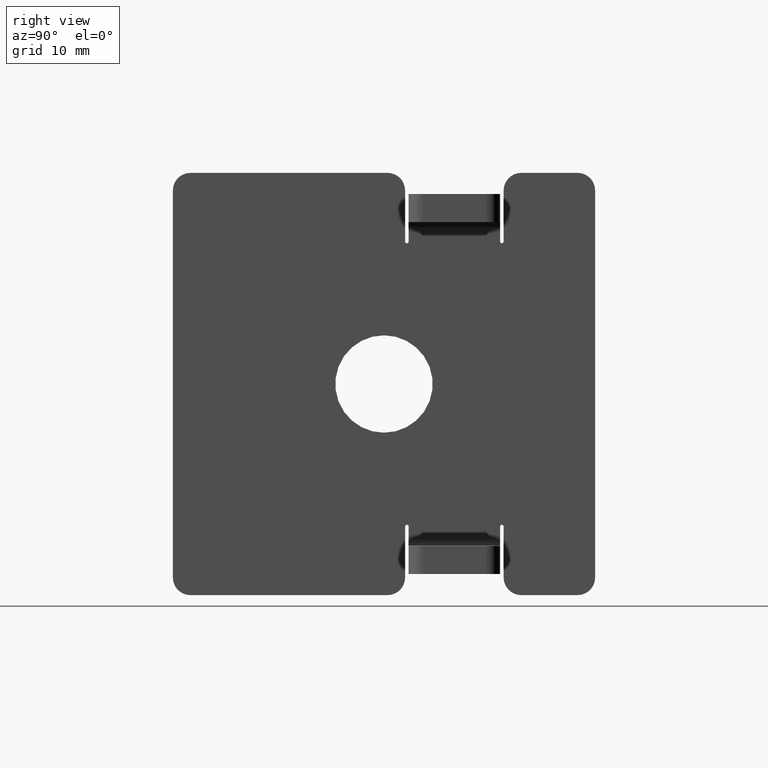
[diagram: clean part render]
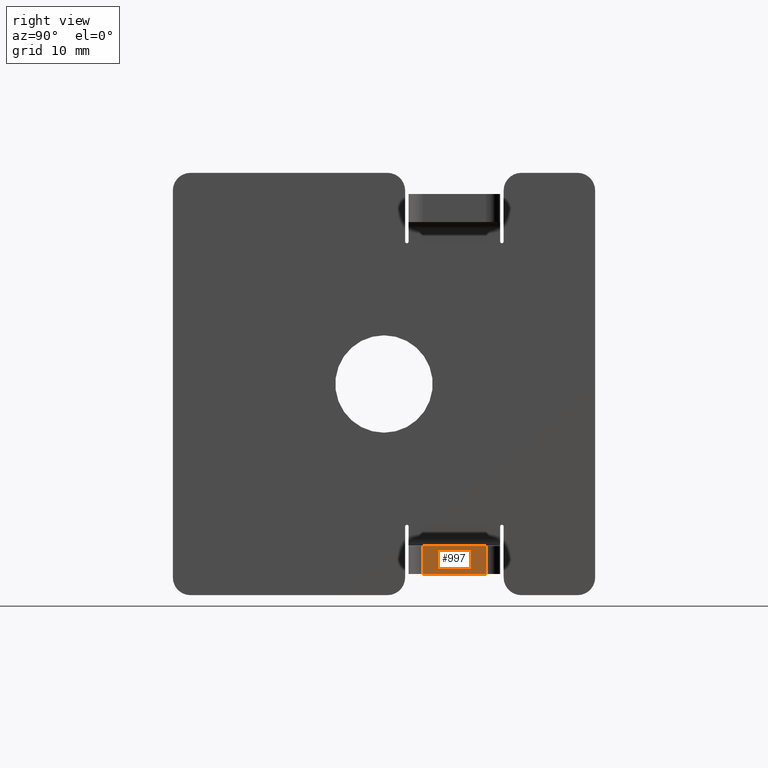
[diagram: same view with one face highlighted and labeled with its STEP entity id]
A machine part, right view. The second image highlights one B-rep face of the part: STEP entity #997.
In plain terms, the highlighted planar face has unit normal (1, 0, 0).
Its self-contained STEP definition (entity closure, byte-faithful):
#39=PLANE('',#1121);
#82=FACE_OUTER_BOUND('',#143,.T.);
#143=EDGE_LOOP('',(#822,#823,#824,#825));
#223=LINE('',#1638,#316);
#228=LINE('',#1650,#321);
#232=LINE('',#1661,#325);
#250=LINE('',#1710,#343);
#316=VECTOR('',#1309,10.);
#321=VECTOR('',#1320,10.);
#325=VECTOR('',#1330,10.);
#343=VECTOR('',#1384,10.);
#484=VERTEX_POINT('',#1635);
#485=VERTEX_POINT('',#1637);
#489=VERTEX_POINT('',#1649);
#492=VERTEX_POINT('',#1657);
#593=EDGE_CURVE('',#484,#485,#223,.T.);
#599=EDGE_CURVE('',#485,#489,#228,.T.);
#605=EDGE_CURVE('',#489,#492,#232,.T.);
#631=EDGE_CURVE('',#484,#492,#250,.T.);
#822=ORIENTED_EDGE('',*,*,#593,.F.);
#823=ORIENTED_EDGE('',*,*,#631,.T.);
#824=ORIENTED_EDGE('',*,*,#605,.F.);
#825=ORIENTED_EDGE('',*,*,#599,.F.);
#997=ADVANCED_FACE('',(#82),#39,.T.);
#1121=AXIS2_PLACEMENT_3D('',#1709,#1382,#1383);
#1309=DIRECTION('',(-8.26946079742758E-16,0.,1.));
#1320=DIRECTION('',(0.,1.,0.));
#1330=DIRECTION('',(8.26946079742758E-16,0.,-1.));
#1382=DIRECTION('center_axis',(1.,0.,8.26946079742758E-16));
#1383=DIRECTION('ref_axis',(8.26946079742758E-16,0.,-1.));
#1384=DIRECTION('',(0.,1.,0.));
#1635=CARTESIAN_POINT('',(60.,5.50000000000001,-27.));
#1637=CARTESIAN_POINT('',(60.,5.50000000000001,-23.));
#1638=CARTESIAN_POINT('',(60.,5.50000000000001,-23.));
#1649=CARTESIAN_POINT('',(60.,14.5,-23.));
#1650=CARTESIAN_POINT('',(60.,3.50000000000001,-23.));
#1657=CARTESIAN_POINT('',(60.,14.5,-27.));
#1661=CARTESIAN_POINT('',(60.,14.5,-23.));
#1709=CARTESIAN_POINT('Origin',(60.,3.50000000000001,-23.));
#1710=CARTESIAN_POINT('',(60.,3.50000000000001,-27.));